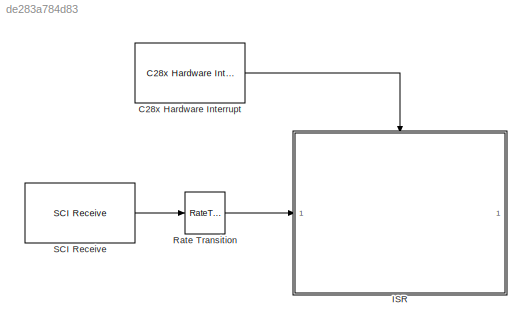
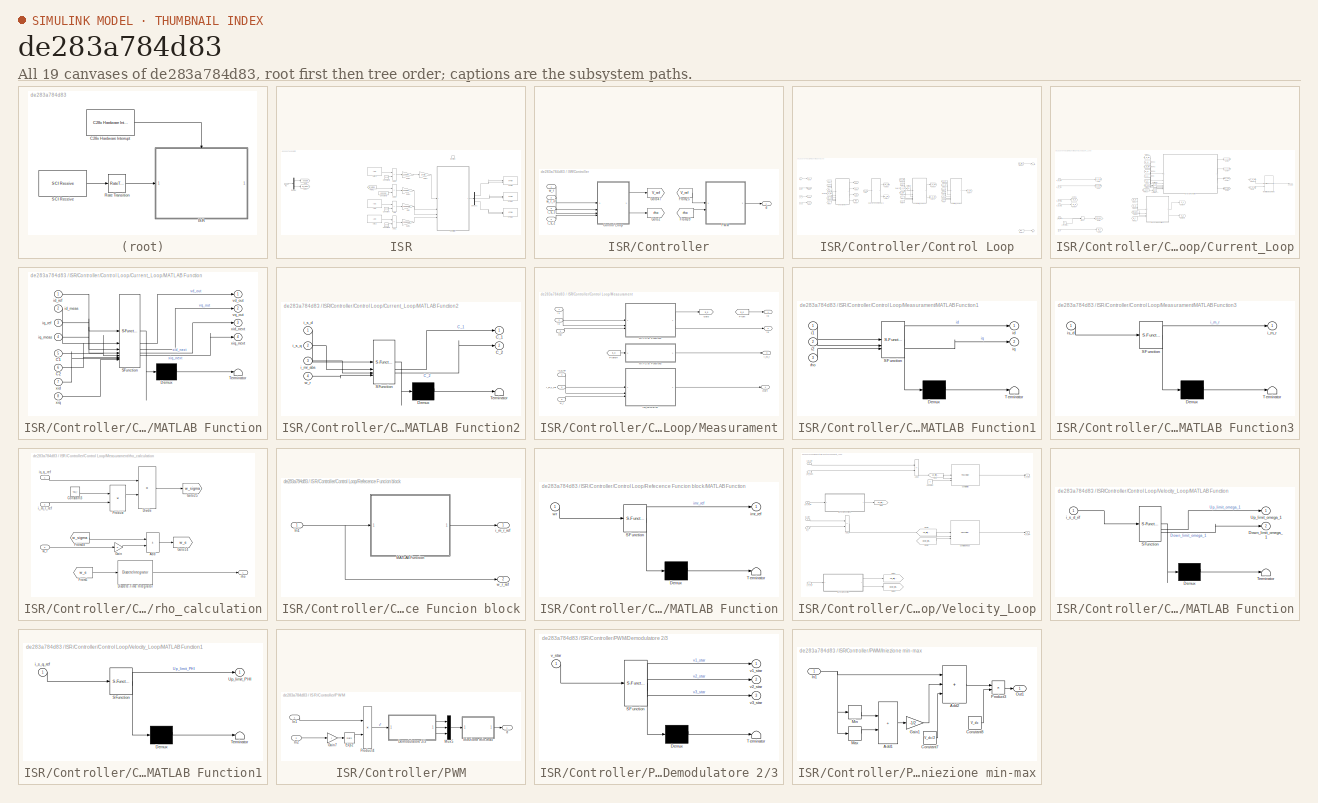
[diagram: thumbnail index - all 19 canvases of the model, root first then tree order]
MODEL slx_de283a784d83
KIND model
CONFIG AbsTol = auto
CONFIG EnableMultiTasking = on
CONFIG FixedStep = 0.01
CONFIG InitFcn = Motor_data_IM_R;
CONFIG MaxStep = 1e-5
CONFIG MinStep = auto
CONFIG RelTol = 1e-4
CONFIG SampleTimeConstraint = Unconstrained
CONFIG SolverName = FixedStepDiscrete
CONFIG StartTime = 0.0
CONFIG StopTime = Inf
BLOCK [Reference] C28x Hardware Interrupt  REF=c2000lib/Scheduling/C28x Hardware Interrupt
  SourceBlock = c2000lib/Scheduling/C28x Hardware Interrupt
  SourceType = C28x Interrupt Block
BLOCK [SubSystem] ISR
BLOCK [Reference] ISR/ADC  REF=c2802xlib/ADC
  LibrarySourceBlock = c2837xDlib/ADC
  SourceBlock = c2802xlib/ADC
  SourceType = ADC Type 3-5
  UserDataPersistent = on
BLOCK [Reference] ISR/ADC1  REF=c2802xlib/ADC
  LibrarySourceBlock = c2837xDlib/ADC
  SourceBlock = c2802xlib/ADC
  SourceType = ADC Type 3-5
  UserDataPersistent = on
BLOCK [Reference] ISR/ADC2  REF=c2802xlib/ADC
  LibrarySourceBlock = c2837xDlib/ADC
  SourceBlock = c2802xlib/ADC
  SourceType = ADC Type 3-5
  UserDataPersistent = on
BLOCK [Sum] ISR/Add
  IconShape = rectangular
  Inputs = +-
BLOCK [Sum] ISR/Add1
  IconShape = rectangular
  Inputs = +-
BLOCK [Sum] ISR/Add2
  IconShape = rectangular
  Inputs = +-
BLOCK [Sum] ISR/Add3
  IconShape = rectangular
  Inputs = +-
BLOCK [Constant] ISR/Constant
  Value = 2048
BLOCK [Constant] ISR/Constant1
  Value = 2048
BLOCK [Constant] ISR/Constant2
  Value = 2048
BLOCK [Constant] ISR/Constant3
  OutDataTypeStr = single
  Value = 65535/2
BLOCK [SubSystem] ISR/Controller
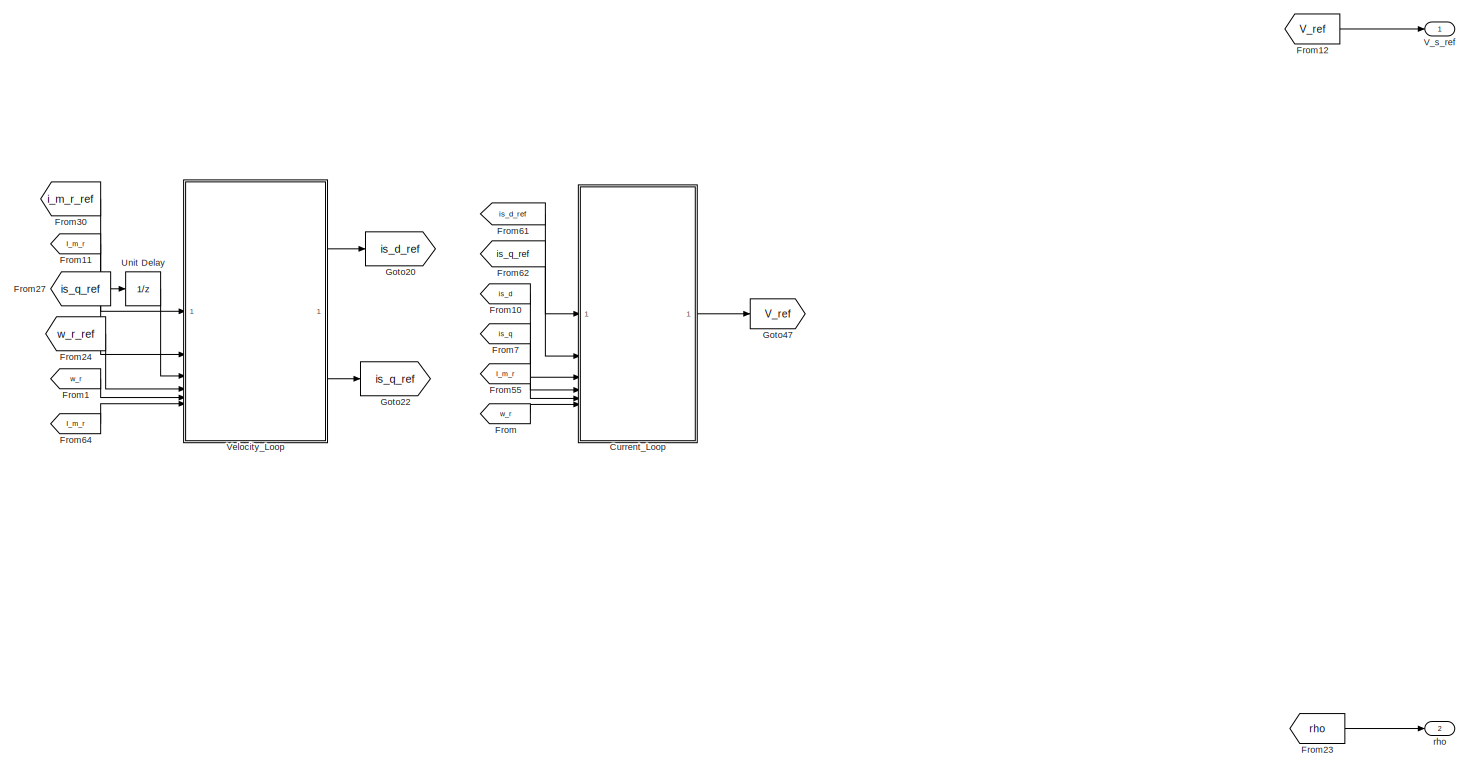
[diagram: ISR/Controller/Control Loop - part 1/2, right side, full height]
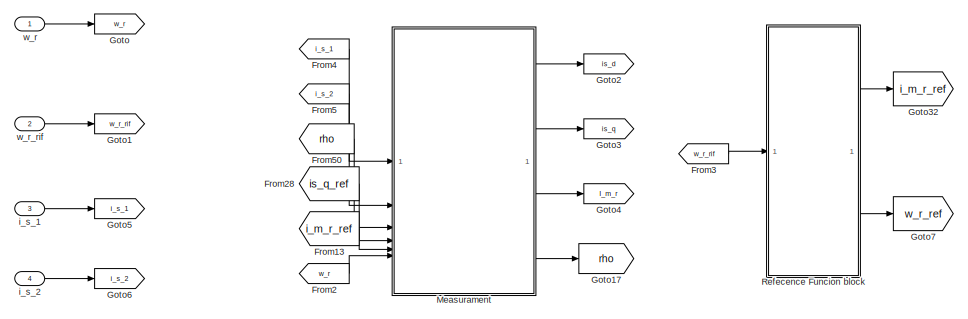
[diagram: ISR/Controller/Control Loop - part 2/2, middle left region]
BLOCK [SubSystem] ISR/Controller/Control Loop
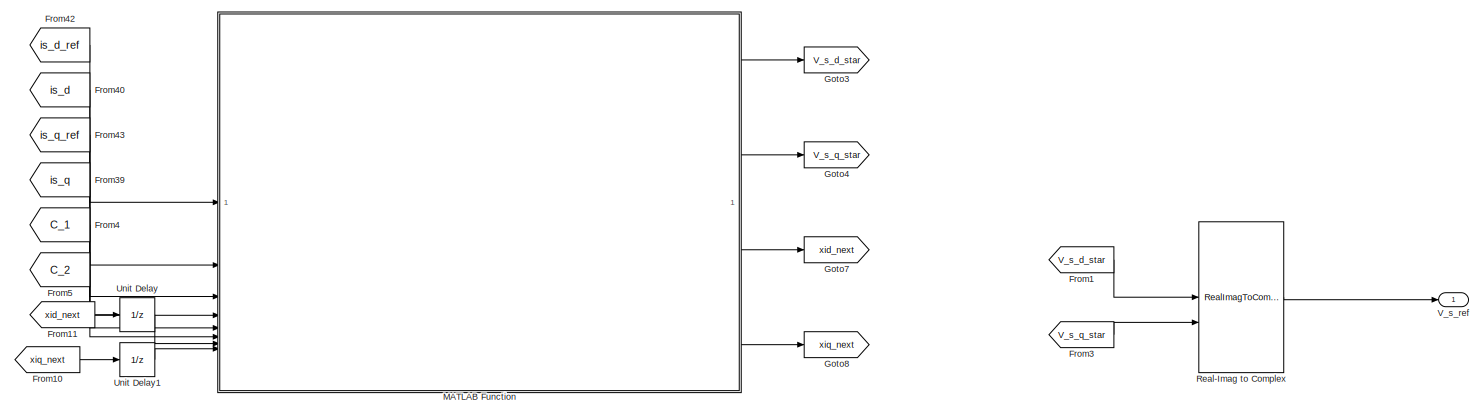
[diagram: ISR/Controller/Control Loop/Current_Loop - part 1/2, top right region]
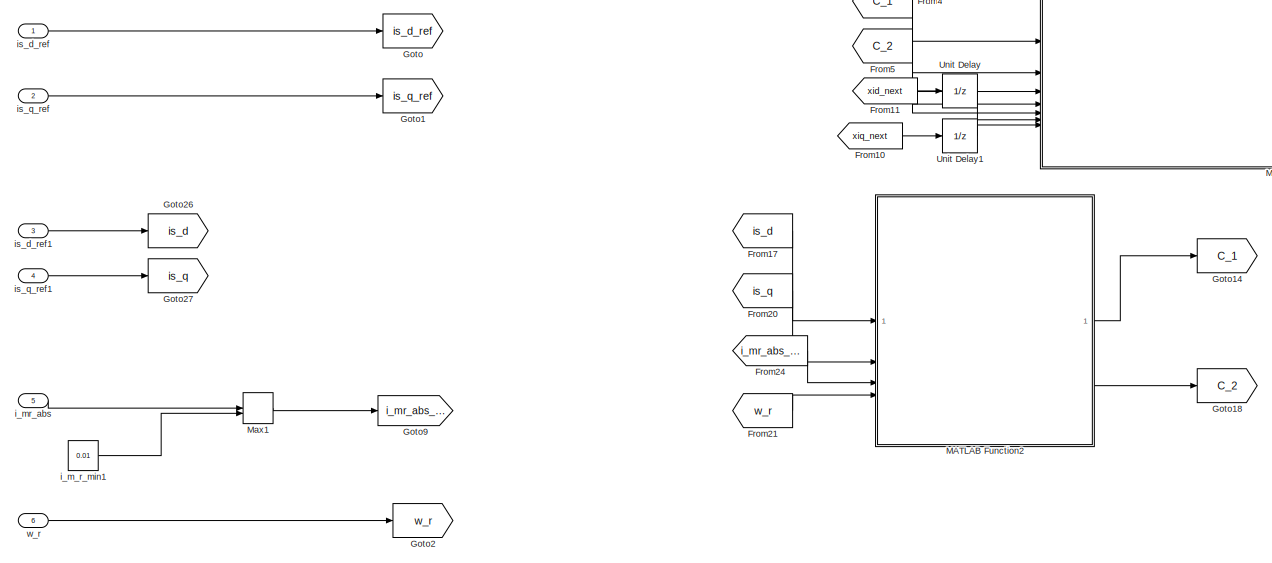
[diagram: ISR/Controller/Control Loop/Current_Loop - part 2/2, middle left region]
BLOCK [SubSystem] ISR/Controller/Control Loop/Current_Loop
BLOCK [From] ISR/Controller/Control Loop/Current_Loop/From1
  GotoTag = V_s_d_star
BLOCK [From] ISR/Controller/Control Loop/Current_Loop/From10
  GotoTag = xiq_next
BLOCK [From] ISR/Controller/Control Loop/Current_Loop/From11
  GotoTag = xid_next
BLOCK [From] ISR/Controller/Control Loop/Current_Loop/From17
  GotoTag = is_d
BLOCK [From] ISR/Controller/Control Loop/Current_Loop/From20
  GotoTag = is_q
BLOCK [From] ISR/Controller/Control Loop/Current_Loop/From21
  GotoTag = w_r
BLOCK [From] ISR/Controller/Control Loop/Current_Loop/From24
  GotoTag = i_mr_abs_safe
BLOCK [From] ISR/Controller/Control Loop/Current_Loop/From3
  GotoTag = V_s_q_star
BLOCK [From] ISR/Controller/Control Loop/Current_Loop/From39
  GotoTag = is_q
BLOCK [From] ISR/Controller/Control Loop/Current_Loop/From4
  GotoTag = C_1
BLOCK [From] ISR/Controller/Control Loop/Current_Loop/From40
  GotoTag = is_d
BLOCK [From] ISR/Controller/Control Loop/Current_Loop/From42
  GotoTag = is_d_ref
BLOCK [From] ISR/Controller/Control Loop/Current_Loop/From43
  GotoTag = is_q_ref
BLOCK [From] ISR/Controller/Control Loop/Current_Loop/From5
  GotoTag = C_2
BLOCK [Goto] ISR/Controller/Control Loop/Current_Loop/Goto
  GotoTag = is_d_ref
BLOCK [Goto] ISR/Controller/Control Loop/Current_Loop/Goto1
  GotoTag = is_q_ref
BLOCK [Goto] ISR/Controller/Control Loop/Current_Loop/Goto14
  GotoTag = C_1
BLOCK [Goto] ISR/Controller/Control Loop/Current_Loop/Goto18
  GotoTag = C_2
BLOCK [Goto] ISR/Controller/Control Loop/Current_Loop/Goto2
  GotoTag = w_r
BLOCK [Goto] ISR/Controller/Control Loop/Current_Loop/Goto26
  GotoTag = is_d
BLOCK [Goto] ISR/Controller/Control Loop/Current_Loop/Goto27
  GotoTag = is_q
BLOCK [Goto] ISR/Controller/Control Loop/Current_Loop/Goto3
  GotoTag = V_s_d_star
BLOCK [Goto] ISR/Controller/Control Loop/Current_Loop/Goto4
  GotoTag = V_s_q_star
BLOCK [Goto] ISR/Controller/Control Loop/Current_Loop/Goto7
  GotoTag = xid_next
BLOCK [Goto] ISR/Controller/Control Loop/Current_Loop/Goto8
  GotoTag = xiq_next
BLOCK [Goto] ISR/Controller/Control Loop/Current_Loop/Goto9
  GotoTag = i_mr_abs_safe
BLOCK [SubSystem] ISR/Controller/Control Loop/Current_Loop/MATLAB Function
  ErrorFcn = Stateflow.Translate.translate
  PermitHierarchicalResolution = ExplicitOnly
  SFBlockType = MATLAB Function
  TreatAsAtomicUnit = on
BLOCK [Demux] ISR/Controller/Control Loop/Current_Loop/MATLAB Function/ Demux 
  Outputs = 1
BLOCK [S-Function] ISR/Controller/Control Loop/Current_Loop/MATLAB Function/ SFunction 
  EnableBusSupport = on
  FunctionName = sf_sfun
  Parameters = Ki_d,Ki_q,Kp_d,Kp_q,Ts,lim
  PortCounts = [8 5]
  SFcnIsStateOwnerBlock = off
  SFunctionDeploymentMode = off
  Tag = Stateflow S-Function 1
BLOCK [Terminator] ISR/Controller/Control Loop/Current_Loop/MATLAB Function/ Terminator 
BLOCK [Inport] ISR/Controller/Control Loop/Current_Loop/MATLAB Function/C1
  Port = 5
BLOCK [Inport] ISR/Controller/Control Loop/Current_Loop/MATLAB Function/C2
  Port = 6
BLOCK [Inport] ISR/Controller/Control Loop/Current_Loop/MATLAB Function/id_meas
  Port = 2
BLOCK [Inport] ISR/Controller/Control Loop/Current_Loop/MATLAB Function/id_ref
BLOCK [Inport] ISR/Controller/Control Loop/Current_Loop/MATLAB Function/iq_meas
  Port = 4
BLOCK [Inport] ISR/Controller/Control Loop/Current_Loop/MATLAB Function/iq_ref
  Port = 3
BLOCK [Outport] ISR/Controller/Control Loop/Current_Loop/MATLAB Function/vd_out
BLOCK [Outport] ISR/Controller/Control Loop/Current_Loop/MATLAB Function/vq_out
  Port = 2
BLOCK [Inport] ISR/Controller/Control Loop/Current_Loop/MATLAB Function/xid
  Port = 7
BLOCK [Outport] ISR/Controller/Control Loop/Current_Loop/MATLAB Function/xid_next
  Port = 3
BLOCK [Inport] ISR/Controller/Control Loop/Current_Loop/MATLAB Function/xiq
  Port = 8
BLOCK [Outport] ISR/Controller/Control Loop/Current_Loop/MATLAB Function/xiq_next
  Port = 4
BLOCK [SubSystem] ISR/Controller/Control Loop/Current_Loop/MATLAB Function2
  ErrorFcn = Stateflow.Translate.translate
  PermitHierarchicalResolution = ExplicitOnly
  SFBlockType = MATLAB Function
  TreatAsAtomicUnit = on
BLOCK [Demux] ISR/Controller/Control Loop/Current_Loop/MATLAB Function2/ Demux 
  Outputs = 1
BLOCK [S-Function] ISR/Controller/Control Loop/Current_Loop/MATLAB Function2/ SFunction 
  EnableBusSupport = on
  FunctionName = sf_sfun
  Parameters = K_r,K_s,Tau_r,p
  PortCounts = [4 3]
  SFcnIsStateOwnerBlock = off
  SFunctionDeploymentMode = off
  Tag = Stateflow S-Function 5
BLOCK [Terminator] ISR/Controller/Control Loop/Current_Loop/MATLAB Function2/ Terminator 
BLOCK [Outport] ISR/Controller/Control Loop/Current_Loop/MATLAB Function2/C_1
BLOCK [Outport] ISR/Controller/Control Loop/Current_Loop/MATLAB Function2/C_2
  Port = 2
BLOCK [Inport] ISR/Controller/Control Loop/Current_Loop/MATLAB Function2/i_mr_abs
  Port = 3
BLOCK [Inport] ISR/Controller/Control Loop/Current_Loop/MATLAB Function2/i_s_d
BLOCK [Inport] ISR/Controller/Control Loop/Current_Loop/MATLAB Function2/i_s_q
  Port = 2
BLOCK [Inport] ISR/Controller/Control Loop/Current_Loop/MATLAB Function2/w_r
  Port = 4
BLOCK [MinMax] ISR/Controller/Control Loop/Current_Loop/Max1
  Function = max
  Inputs = 2
BLOCK [RealImagToComplex] ISR/Controller/Control Loop/Current_Loop/Real-Imag to Complex
BLOCK [UnitDelay] ISR/Controller/Control Loop/Current_Loop/Unit Delay
  HasFrameUpgradeWarning = on
  SampleTime = -1
BLOCK [UnitDelay] ISR/Controller/Control Loop/Current_Loop/Unit Delay1
  HasFrameUpgradeWarning = on
  SampleTime = -1
BLOCK [Outport] ISR/Controller/Control Loop/Current_Loop/V_s_ref
BLOCK [Constant] ISR/Controller/Control Loop/Current_Loop/i_m_r_min1
  OutDataTypeStr = single
  Value = 0.01
BLOCK [Inport] ISR/Controller/Control Loop/Current_Loop/i_mr_abs
  Port = 5
BLOCK [Inport] ISR/Controller/Control Loop/Current_Loop/is_d_ref
BLOCK [Inport] ISR/Controller/Control Loop/Current_Loop/is_d_ref1
  Port = 3
BLOCK [Inport] ISR/Controller/Control Loop/Current_Loop/is_q_ref
  Port = 2
BLOCK [Inport] ISR/Controller/Control Loop/Current_Loop/is_q_ref1
  Port = 4
BLOCK [Inport] ISR/Controller/Control Loop/Current_Loop/w_r
  Port = 6
BLOCK [From] ISR/Controller/Control Loop/From
  GotoTag = w_r
BLOCK [From] ISR/Controller/Control Loop/From1
  GotoTag = w_r
BLOCK [From] ISR/Controller/Control Loop/From10
  GotoTag = is_d
BLOCK [From] ISR/Controller/Control Loop/From11
  GotoTag = I_m_r
BLOCK [From] ISR/Controller/Control Loop/From12
  GotoTag = V_ref
BLOCK [From] ISR/Controller/Control Loop/From13
  GotoTag = i_m_r_ref
BLOCK [From] ISR/Controller/Control Loop/From2
  GotoTag = w_r
BLOCK [From] ISR/Controller/Control Loop/From23
  GotoTag = rho
BLOCK [From] ISR/Controller/Control Loop/From24
  GotoTag = w_r_ref
BLOCK [From] ISR/Controller/Control Loop/From27
  GotoTag = is_q_ref
BLOCK [From] ISR/Controller/Control Loop/From28
  GotoTag = is_q_ref
BLOCK [From] ISR/Controller/Control Loop/From3
  GotoTag = w_r_rif
BLOCK [From] ISR/Controller/Control Loop/From30
  GotoTag = i_m_r_ref
BLOCK [From] ISR/Controller/Control Loop/From4
  GotoTag = i_s_1
BLOCK [From] ISR/Controller/Control Loop/From5
  GotoTag = i_s_2
BLOCK [From] ISR/Controller/Control Loop/From50
  GotoTag = rho
BLOCK [From] ISR/Controller/Control Loop/From55
  GotoTag = I_m_r
BLOCK [From] ISR/Controller/Control Loop/From61
  GotoTag = is_d_ref
BLOCK [From] ISR/Controller/Control Loop/From62
  GotoTag = is_q_ref
BLOCK [From] ISR/Controller/Control Loop/From64
  GotoTag = I_m_r
BLOCK [From] ISR/Controller/Control Loop/From7
  GotoTag = is_q
BLOCK [Goto] ISR/Controller/Control Loop/Goto
  GotoTag = w_r
BLOCK [Goto] ISR/Controller/Control Loop/Goto1
  GotoTag = w_r_rif
BLOCK [Goto] ISR/Controller/Control Loop/Goto17
  GotoTag = rho
BLOCK [Goto] ISR/Controller/Control Loop/Goto2
  GotoTag = is_d
BLOCK [Goto] ISR/Controller/Control Loop/Goto20
  GotoTag = is_d_ref
BLOCK [Goto] ISR/Controller/Control Loop/Goto22
  GotoTag = is_q_ref
BLOCK [Goto] ISR/Controller/Control Loop/Goto3
  GotoTag = is_q
BLOCK [Goto] ISR/Controller/Control Loop/Goto32
  GotoTag = i_m_r_ref
BLOCK [Goto] ISR/Controller/Control Loop/Goto4
  GotoTag = I_m_r
BLOCK [Goto] ISR/Controller/Control Loop/Goto47
  GotoTag = V_ref
BLOCK [Goto] ISR/Controller/Control Loop/Goto5
  GotoTag = i_s_1
BLOCK [Goto] ISR/Controller/Control Loop/Goto6
  GotoTag = i_s_2
BLOCK [Goto] ISR/Controller/Control Loop/Goto7
  GotoTag = w_r_ref
BLOCK [SubSystem] ISR/Controller/Control Loop/Measurament
BLOCK [From] ISR/Controller/Control Loop/Measurament/From
  GotoTag = is_d
BLOCK [From] ISR/Controller/Control Loop/Measurament/From54
  GotoTag = is_d
BLOCK [Goto] ISR/Controller/Control Loop/Measurament/Goto
  GotoTag = is_d
BLOCK [SubSystem] ISR/Controller/Control Loop/Measurament/MATLAB Function1
  ErrorFcn = Stateflow.Translate.translate
  PermitHierarchicalResolution = ExplicitOnly
  SFBlockType = MATLAB Function
  TreatAsAtomicUnit = on
BLOCK [Demux] ISR/Controller/Control Loop/Measurament/MATLAB Function1/ Demux 
  Outputs = 1
BLOCK [S-Function] ISR/Controller/Control Loop/Measurament/MATLAB Function1/ SFunction 
  EnableBusSupport = on
  FunctionName = sf_sfun
  PortCounts = [3 3]
  SFcnIsStateOwnerBlock = off
  SFunctionDeploymentMode = off
  Tag = Stateflow S-Function 2
BLOCK [Terminator] ISR/Controller/Control Loop/Measurament/MATLAB Function1/ Terminator 
BLOCK [Inport] ISR/Controller/Control Loop/Measurament/MATLAB Function1/i1
BLOCK [Inport] ISR/Controller/Control Loop/Measurament/MATLAB Function1/i2
  Port = 2
BLOCK [Outport] ISR/Controller/Control Loop/Measurament/MATLAB Function1/id
BLOCK [Outport] ISR/Controller/Control Loop/Measurament/MATLAB Function1/iq
  Port = 2
BLOCK [Inport] ISR/Controller/Control Loop/Measurament/MATLAB Function1/rho
  Port = 3
BLOCK [SubSystem] ISR/Controller/Control Loop/Measurament/MATLAB Function3
  ErrorFcn = Stateflow.Translate.translate
  PermitHierarchicalResolution = ExplicitOnly
  SFBlockType = MATLAB Function
  TreatAsAtomicUnit = on
BLOCK [Demux] ISR/Controller/Control Loop/Measurament/MATLAB Function3/ Demux 
  Outputs = 1
BLOCK [S-Function] ISR/Controller/Control Loop/Measurament/MATLAB Function3/ SFunction 
  EnableBusSupport = on
  FunctionName = sf_sfun
  Parameters = Tau_r,Ts
  PortCounts = [1 2]
  SFcnIsStateOwnerBlock = off
  SFunctionDeploymentMode = off
  Tag = Stateflow S-Function 3
BLOCK [Terminator] ISR/Controller/Control Loop/Measurament/MATLAB Function3/ Terminator 
BLOCK [Outport] ISR/Controller/Control Loop/Measurament/MATLAB Function3/i_m_r
BLOCK [Inport] ISR/Controller/Control Loop/Measurament/MATLAB Function3/is_d
BLOCK [Outport] ISR/Controller/Control Loop/Measurament/Out4
  Port = 4
BLOCK [Inport] ISR/Controller/Control Loop/Measurament/i1
BLOCK [Inport] ISR/Controller/Control Loop/Measurament/i2
  Port = 2
BLOCK [Outport] ISR/Controller/Control Loop/Measurament/i_m_r
  Port = 3
BLOCK [Inport] ISR/Controller/Control Loop/Measurament/i_m_r_ref
  Port = 5
BLOCK [Outport] ISR/Controller/Control Loop/Measurament/id
BLOCK [Outport] ISR/Controller/Control Loop/Measurament/iq
  Port = 2
BLOCK [Inport] ISR/Controller/Control Loop/Measurament/is_q_ref
  Port = 4
BLOCK [Inport] ISR/Controller/Control Loop/Measurament/rho
  Port = 3
BLOCK [SubSystem] ISR/Controller/Control Loop/Measurament/rho_calculation
BLOCK [Sum] ISR/Controller/Control Loop/Measurament/rho_calculation/Add
  IconShape = rectangular
BLOCK [Constant] ISR/Controller/Control Loop/Measurament/rho_calculation/Constant3
  Value = Tau_r
BLOCK [DiscreteIntegrator] ISR/Controller/Control Loop/Measurament/rho_calculation/Discrete-Time Integrator
  ICPrevOutput = DiscIntNeverNeededParam
  ICPrevScaledInput = DiscIntNeverNeededParam
  InitialConditionSetting = Auto
  OutDataTypeStr = single
  SampleTime = -1
BLOCK [Product] ISR/Controller/Control Loop/Measurament/rho_calculation/Divide
  Inputs = */
BLOCK [From] ISR/Controller/Control Loop/Measurament/rho_calculation/From48
  GotoTag = w_sigma
BLOCK [From] ISR/Controller/Control Loop/Measurament/rho_calculation/From5
  GotoTag = w_e
BLOCK [Gain] ISR/Controller/Control Loop/Measurament/rho_calculation/Gain
  Gain = p
BLOCK [Goto] ISR/Controller/Control Loop/Measurament/rho_calculation/Goto14
  GotoTag = w_e
BLOCK [Goto] ISR/Controller/Control Loop/Measurament/rho_calculation/Goto25
  GotoTag = w_sigma
BLOCK [Product] ISR/Controller/Control Loop/Measurament/rho_calculation/Product
BLOCK [Inport] ISR/Controller/Control Loop/Measurament/rho_calculation/i_m_r_ref
  Port = 2
BLOCK [Inport] ISR/Controller/Control Loop/Measurament/rho_calculation/is_q_ref
BLOCK [Outport] ISR/Controller/Control Loop/Measurament/rho_calculation/rho
BLOCK [Inport] ISR/Controller/Control Loop/Measurament/rho_calculation/w_r
  Port = 3
BLOCK [Inport] ISR/Controller/Control Loop/Measurament/w_r
  Port = 6
BLOCK [SubSystem] ISR/Controller/Control Loop/Refecence Funcion block
BLOCK [Inport] ISR/Controller/Control Loop/Refecence Funcion block/In1
BLOCK [SubSystem] ISR/Controller/Control Loop/Refecence Funcion block/MATLAB Function
  ErrorFcn = Stateflow.Translate.translate
  PermitHierarchicalResolution = ExplicitOnly
  SFBlockType = MATLAB Function
  TreatAsAtomicUnit = on
BLOCK [Demux] ISR/Controller/Control Loop/Refecence Funcion block/MATLAB Function/ Demux 
  Outputs = 1
BLOCK [S-Function] ISR/Controller/Control Loop/Refecence Funcion block/MATLAB Function/ SFunction 
  EnableBusSupport = on
  FunctionName = sf_sfun
  Parameters = imr_min,wr_n
  PortCounts = [1 2]
  SFcnIsStateOwnerBlock = off
  SFunctionDeploymentMode = off
  Tag = Stateflow S-Function 6
BLOCK [Terminator] ISR/Controller/Control Loop/Refecence Funcion block/MATLAB Function/ Terminator 
BLOCK [Outport] ISR/Controller/Control Loop/Refecence Funcion block/MATLAB Function/imr_ref
BLOCK [Inport] ISR/Controller/Control Loop/Refecence Funcion block/MATLAB Function/wr
BLOCK [Outport] ISR/Controller/Control Loop/Refecence Funcion block/i_m_r_ref
BLOCK [Outport] ISR/Controller/Control Loop/Refecence Funcion block/w_r_ref
  Port = 2
BLOCK [UnitDelay] ISR/Controller/Control Loop/Unit Delay
  HasFrameUpgradeWarning = on
  SampleTime = -1
BLOCK [Outport] ISR/Controller/Control Loop/V_s_ref
BLOCK [SubSystem] ISR/Controller/Control Loop/Velocity_Loop
BLOCK [Sum] ISR/Controller/Control Loop/Velocity_Loop/Add1
  IconShape = rectangular
  Inputs = +-
BLOCK [Sum] ISR/Controller/Control Loop/Velocity_Loop/Add2
  IconShape = rectangular
  Inputs = +-
BLOCK [Constant] ISR/Controller/Control Loop/Velocity_Loop/Constant
  OutDataTypeStr = single
  Value = 0
BLOCK [Reference] ISR/Controller/Control Loop/Velocity_Loop/Controller flux  REF=slpidlib/PID Controller
  SourceBlock = slpidlib/PID Controller
  SourceType = PID 1dof
BLOCK [Reference] ISR/Controller/Control Loop/Velocity_Loop/Controller omega  REF=slpidlib/PID Controller
  SourceBlock = slpidlib/PID Controller
  SourceType = PID 1dof
BLOCK [From] ISR/Controller/Control Loop/Velocity_Loop/From
  GotoTag = Up_limit_PHI
BLOCK [From] ISR/Controller/Control Loop/Velocity_Loop/From2
  GotoTag = Down_limit_omega_1
BLOCK [From] ISR/Controller/Control Loop/Velocity_Loop/From3
  GotoTag = Up_limit_omega_1
BLOCK [Goto] ISR/Controller/Control Loop/Velocity_Loop/Goto
  GotoTag = Up_limit_PHI
BLOCK [Goto] ISR/Controller/Control Loop/Velocity_Loop/Goto1
  GotoTag = Up_limit_omega_1
BLOCK [Goto] ISR/Controller/Control Loop/Velocity_Loop/Goto2
  GotoTag = Down_limit_omega_1
BLOCK [SubSystem] ISR/Controller/Control Loop/Velocity_Loop/MATLAB Function
  ErrorFcn = Stateflow.Translate.translate
  PermitHierarchicalResolution = ExplicitOnly
  SFBlockType = MATLAB Function
  TreatAsAtomicUnit = on
BLOCK [Demux] ISR/Controller/Control Loop/Velocity_Loop/MATLAB Function/ Demux 
  Outputs = 1
BLOCK [S-Function] ISR/Controller/Control Loop/Velocity_Loop/MATLAB Function/ SFunction 
  EnableBusSupport = on
  FunctionName = sf_sfun
  Parameters = Is_adc
  PortCounts = [1 3]
  SFcnIsStateOwnerBlock = off
  SFunctionDeploymentMode = off
  Tag = Stateflow S-Function 4
BLOCK [Terminator] ISR/Controller/Control Loop/Velocity_Loop/MATLAB Function/ Terminator 
BLOCK [Outport] ISR/Controller/Control Loop/Velocity_Loop/MATLAB Function/Down_limit_omega_1
  Port = 2
BLOCK [Outport] ISR/Controller/Control Loop/Velocity_Loop/MATLAB Function/Up_limit_omega_1
BLOCK [Inport] ISR/Controller/Control Loop/Velocity_Loop/MATLAB Function/i_s_d_rif
BLOCK [SubSystem] ISR/Controller/Control Loop/Velocity_Loop/MATLAB Function1
  ErrorFcn = Stateflow.Translate.translate
  PermitHierarchicalResolution = ExplicitOnly
  SFBlockType = MATLAB Function
  TreatAsAtomicUnit = on
BLOCK [Demux] ISR/Controller/Control Loop/Velocity_Loop/MATLAB Function1/ Demux 
  Outputs = 1
BLOCK [S-Function] ISR/Controller/Control Loop/Velocity_Loop/MATLAB Function1/ SFunction 
  EnableBusSupport = on
  FunctionName = sf_sfun
  Parameters = Is_adc
  PortCounts = [1 2]
  SFcnIsStateOwnerBlock = off
  SFunctionDeploymentMode = off
  Tag = Stateflow S-Function 7
BLOCK [Terminator] ISR/Controller/Control Loop/Velocity_Loop/MATLAB Function1/ Terminator 
BLOCK [Outport] ISR/Controller/Control Loop/Velocity_Loop/MATLAB Function1/Up_limit_PHI
BLOCK [Inport] ISR/Controller/Control Loop/Velocity_Loop/MATLAB Function1/i_s_q_ref
BLOCK [Inport] ISR/Controller/Control Loop/Velocity_Loop/i_m_r_abs
  Port = 2
BLOCK [Inport] ISR/Controller/Control Loop/Velocity_Loop/i_m_r_ref
BLOCK [Inport] ISR/Controller/Control Loop/Velocity_Loop/i_s_d_rif
  Port = 6
BLOCK [Inport] ISR/Controller/Control Loop/Velocity_Loop/i_s_q_ref
  Port = 3
BLOCK [Outport] ISR/Controller/Control Loop/Velocity_Loop/is_d_ref
BLOCK [Outport] ISR/Controller/Control Loop/Velocity_Loop/is_q_ref
  Port = 2
BLOCK [Inport] ISR/Controller/Control Loop/Velocity_Loop/w_r
  Port = 5
BLOCK [Inport] ISR/Controller/Control Loop/Velocity_Loop/w_r_ref
  Port = 4
BLOCK [Inport] ISR/Controller/Control Loop/i_s_1
  Port = 3
BLOCK [Inport] ISR/Controller/Control Loop/i_s_2
  Port = 4
BLOCK [Outport] ISR/Controller/Control Loop/rho
  Port = 2
BLOCK [Inport] ISR/Controller/Control Loop/w_r
BLOCK [Inport] ISR/Controller/Control Loop/w_r_rif
  Port = 2
BLOCK [From] ISR/Controller/From25
  GotoTag = V_ref
BLOCK [From] ISR/Controller/From39
  GotoTag = rho
BLOCK [Goto] ISR/Controller/Goto2
  GotoTag = rho
BLOCK [Goto] ISR/Controller/Goto47
  GotoTag = V_ref
BLOCK [SubSystem] ISR/Controller/PWM
BLOCK [SubSystem] ISR/Controller/PWM/Demodulatore 2//3
  ErrorFcn = Stateflow.Translate.translate
  PermitHierarchicalResolution = ExplicitOnly
  SFBlockType = MATLAB Function
  TreatAsAtomicUnit = on
BLOCK [Demux] ISR/Controller/PWM/Demodulatore 2//3/ Demux 
  Outputs = 1
BLOCK [S-Function] ISR/Controller/PWM/Demodulatore 2//3/ SFunction 
  EnableBusSupport = on
  FunctionName = sf_sfun
  PortCounts = [1 4]
  SFcnIsStateOwnerBlock = off
  SFunctionDeploymentMode = off
  Tag = Stateflow S-Function 8
BLOCK [Terminator] ISR/Controller/PWM/Demodulatore 2//3/ Terminator 
BLOCK [Outport] ISR/Controller/PWM/Demodulatore 2//3/v1_star
BLOCK [Outport] ISR/Controller/PWM/Demodulatore 2//3/v2_star
  Port = 2
BLOCK [Outport] ISR/Controller/PWM/Demodulatore 2//3/v3_star
  Port = 3
BLOCK [Inport] ISR/Controller/PWM/Demodulatore 2//3/v_star
BLOCK [Math] ISR/Controller/PWM/Exp2
  SignedPower = on
BLOCK [Gain] ISR/Controller/PWM/Gain7
  Gain = j
BLOCK [Inport] ISR/Controller/PWM/In1
BLOCK [Inport] ISR/Controller/PWM/In2
  Port = 2
BLOCK [SubSystem] ISR/Controller/PWM/Iniezione min-max
BLOCK [Sum] ISR/Controller/PWM/Iniezione min-max/Add1
  IconShape = rectangular
BLOCK [Sum] ISR/Controller/PWM/Iniezione min-max/Add2
  IconShape = rectangular
  Inputs = +++
BLOCK [Constant] ISR/Controller/PWM/Iniezione min-max/Constant7
  Value = V_dc/2
BLOCK [Constant] ISR/Controller/PWM/Iniezione min-max/Constant8
  Value = V_dc
BLOCK [Gain] ISR/Controller/PWM/Iniezione min-max/Gain1
  Gain = -1/2
BLOCK [Inport] ISR/Controller/PWM/Iniezione min-max/In1
BLOCK [MinMax] ISR/Controller/PWM/Iniezione min-max/Max
  Function = max
BLOCK [MinMax] ISR/Controller/PWM/Iniezione min-max/Min
BLOCK [Outport] ISR/Controller/PWM/Iniezione min-max/Out1
BLOCK [Product] ISR/Controller/PWM/Iniezione min-max/Product3
  Inputs = */
BLOCK [Mux] ISR/Controller/PWM/Mux5
  DisplayOption = bar
  Inputs = 3
BLOCK [Product] ISR/Controller/PWM/Product4
BLOCK [Outport] ISR/Controller/PWM/d
BLOCK [Outport] ISR/Controller/d
BLOCK [Inport] ISR/Controller/i_s_1
  Port = 3
BLOCK [Inport] ISR/Controller/i_s_2
  Port = 4
BLOCK [Inport] ISR/Controller/w_r
BLOCK [Inport] ISR/Controller/w_r_rif
  Port = 2
BLOCK [Demux] ISR/Demux
  Outputs = 2
BLOCK [Demux] ISR/Demux1
  Outputs = 3
BLOCK [From] ISR/From1
  GotoTag = ref_uint16
BLOCK [Gain] ISR/Gain
  Gain = 200/4095
  OutDataTypeStr = single
BLOCK [Gain] ISR/Gain1
  Gain = 200/4095
  OutDataTypeStr = single
BLOCK [Gain] ISR/Gain2
  Gain = 1200/4095
  OutDataTypeStr = single
BLOCK [Gain] ISR/Gain3
  Gain = (2*pi)/60
  OutDataTypeStr = single
BLOCK [Gain] ISR/Gain4
  Gain = 1200/65535
  OutDataTypeStr = single
  ParamDataTypeStr = single
BLOCK [Goto] ISR/Goto
  GotoTag = enable
BLOCK [Goto] ISR/Goto1
  GotoTag = ref_uint16
BLOCK [Inport] ISR/In1
BLOCK [Reference] ISR/ePWM  REF=c2802xlib/ePWM
  LibrarySourceBlock = c2837xDlib/ePWM
  SourceBlock = c2802xlib/ePWM
  SourceType = ePWM Type 1-4
  UserDataPersistent = on
BLOCK [Reference] ISR/ePWM1  REF=c2802xlib/ePWM
  LibrarySourceBlock = c2837xDlib/ePWM
  SourceBlock = c2802xlib/ePWM
  SourceType = ePWM Type 1-4
  UserDataPersistent = on
BLOCK [Reference] ISR/ePWM2  REF=c2802xlib/ePWM
  LibrarySourceBlock = c2837xDlib/ePWM
  SourceBlock = c2802xlib/ePWM
  SourceType = ePWM Type 1-4
  UserDataPersistent = on
BLOCK [TriggerPort] ISR/function
  StatesWhenEnabling = held
  TriggerType = function-call
  VariantControl = (inherit)
BLOCK [RateTransition] Rate Transition
  Deterministic = off
BLOCK [Reference] SCI Receive  REF=c280xlib/SCI Receive
  LibrarySourceBlock = c2837xDlib/SCI Receive
  Priority = 2
  SourceBlock = c280xlib/SCI Receive
  SourceType = C28x SCI Receive
LINE C28x Hardware Interrupt:1 -> ISR:trigger
LINE ISR/ADC1:1 -> ISR/Add2:1
LINE ISR/ADC2:1 -> ISR/Add1:1
LINE ISR/ADC:1 -> ISR/Add:1
LINE ISR/Add1:1 -> ISR/Gain1:1
LINE ISR/Add2:1 -> ISR/Gain2:1
LINE ISR/Add3:1 -> ISR/Gain4:1
LINE ISR/Add:1 -> ISR/Gain:1
LINE ISR/Constant1:1 -> ISR/Add1:2
LINE ISR/Constant2:1 -> ISR/Add2:2
LINE ISR/Constant3:1 -> ISR/Add3:2
LINE ISR/Constant:1 -> ISR/Add:2
LINE ISR/Controller/Control Loop/Current_Loop/From10:1 -> ISR/Controller/Control Loop/Current_Loop/Unit Delay1:1
LINE ISR/Controller/Control Loop/Current_Loop/From11:1 -> ISR/Controller/Control Loop/Current_Loop/Unit Delay:1
LINE ISR/Controller/Control Loop/Current_Loop/From17:1 -> ISR/Controller/Control Loop/Current_Loop/MATLAB Function2:1
LINE ISR/Controller/Control Loop/Current_Loop/From1:1 -> ISR/Controller/Control Loop/Current_Loop/Real-Imag to Complex:1
LINE ISR/Controller/Control Loop/Current_Loop/From20:1 -> ISR/Controller/Control Loop/Current_Loop/MATLAB Function2:2
LINE ISR/Controller/Control Loop/Current_Loop/From21:1 -> ISR/Controller/Control Loop/Current_Loop/MATLAB Function2:4
LINE ISR/Controller/Control Loop/Current_Loop/From24:1 -> ISR/Controller/Control Loop/Current_Loop/MATLAB Function2:3
LINE ISR/Controller/Control Loop/Current_Loop/From39:1 -> ISR/Controller/Control Loop/Current_Loop/MATLAB Function:4
LINE ISR/Controller/Control Loop/Current_Loop/From3:1 -> ISR/Controller/Control Loop/Current_Loop/Real-Imag to Complex:2
LINE ISR/Controller/Control Loop/Current_Loop/From40:1 -> ISR/Controller/Control Loop/Current_Loop/MATLAB Function:2
LINE ISR/Controller/Control Loop/Current_Loop/From42:1 -> ISR/Controller/Control Loop/Current_Loop/MATLAB Function:1
LINE ISR/Controller/Control Loop/Current_Loop/From43:1 -> ISR/Controller/Control Loop/Current_Loop/MATLAB Function:3
LINE ISR/Controller/Control Loop/Current_Loop/From4:1 -> ISR/Controller/Control Loop/Current_Loop/MATLAB Function:5
LINE ISR/Controller/Control Loop/Current_Loop/From5:1 -> ISR/Controller/Control Loop/Current_Loop/MATLAB Function:6
LINE ISR/Controller/Control Loop/Current_Loop/MATLAB Function2:1 -> ISR/Controller/Control Loop/Current_Loop/Goto14:1
LINE ISR/Controller/Control Loop/Current_Loop/MATLAB Function2:2 -> ISR/Controller/Control Loop/Current_Loop/Goto18:1
LINE ISR/Controller/Control Loop/Current_Loop/MATLAB Function:1 -> ISR/Controller/Control Loop/Current_Loop/Goto3:1
LINE ISR/Controller/Control Loop/Current_Loop/MATLAB Function:2 -> ISR/Controller/Control Loop/Current_Loop/Goto4:1
LINE ISR/Controller/Control Loop/Current_Loop/MATLAB Function:3 -> ISR/Controller/Control Loop/Current_Loop/Goto7:1
LINE ISR/Controller/Control Loop/Current_Loop/MATLAB Function:4 -> ISR/Controller/Control Loop/Current_Loop/Goto8:1
LINE ISR/Controller/Control Loop/Current_Loop/Max1:1 -> ISR/Controller/Control Loop/Current_Loop/Goto9:1
LINE ISR/Controller/Control Loop/Current_Loop/Real-Imag to Complex:1 -> ISR/Controller/Control Loop/Current_Loop/V_s_ref:1
LINE ISR/Controller/Control Loop/Current_Loop/Unit Delay1:1 -> ISR/Controller/Control Loop/Current_Loop/MATLAB Function:8
LINE ISR/Controller/Control Loop/Current_Loop/Unit Delay:1 -> ISR/Controller/Control Loop/Current_Loop/MATLAB Function:7
LINE ISR/Controller/Control Loop/Current_Loop/i_m_r_min1:1 -> ISR/Controller/Control Loop/Current_Loop/Max1:2
LINE ISR/Controller/Control Loop/Current_Loop/i_mr_abs:1 -> ISR/Controller/Control Loop/Current_Loop/Max1:1
LINE ISR/Controller/Control Loop/Current_Loop/is_d_ref1:1 -> ISR/Controller/Control Loop/Current_Loop/Goto26:1
LINE ISR/Controller/Control Loop/Current_Loop/is_d_ref:1 -> ISR/Controller/Control Loop/Current_Loop/Goto:1
LINE ISR/Controller/Control Loop/Current_Loop/is_q_ref1:1 -> ISR/Controller/Control Loop/Current_Loop/Goto27:1
LINE ISR/Controller/Control Loop/Current_Loop/is_q_ref:1 -> ISR/Controller/Control Loop/Current_Loop/Goto1:1
LINE ISR/Controller/Control Loop/Current_Loop/w_r:1 -> ISR/Controller/Control Loop/Current_Loop/Goto2:1
LINE ISR/Controller/Control Loop/Current_Loop:1 -> ISR/Controller/Control Loop/Goto47:1
LINE ISR/Controller/Control Loop/From10:1 -> ISR/Controller/Control Loop/Current_Loop:3
LINE ISR/Controller/Control Loop/From11:1 -> ISR/Controller/Control Loop/Velocity_Loop:2
LINE ISR/Controller/Control Loop/From12:1 -> ISR/Controller/Control Loop/V_s_ref:1
LINE ISR/Controller/Control Loop/From13:1 -> ISR/Controller/Control Loop/Measurament:5
LINE ISR/Controller/Control Loop/From1:1 -> ISR/Controller/Control Loop/Velocity_Loop:5
LINE ISR/Controller/Control Loop/From23:1 -> ISR/Controller/Control Loop/rho:1
LINE ISR/Controller/Control Loop/From24:1 -> ISR/Controller/Control Loop/Velocity_Loop:4
LINE ISR/Controller/Control Loop/From27:1 -> ISR/Controller/Control Loop/Unit Delay:1
LINE ISR/Controller/Control Loop/From28:1 -> ISR/Controller/Control Loop/Measurament:4
LINE ISR/Controller/Control Loop/From2:1 -> ISR/Controller/Control Loop/Measurament:6
LINE ISR/Controller/Control Loop/From30:1 -> ISR/Controller/Control Loop/Velocity_Loop:1
LINE ISR/Controller/Control Loop/From3:1 -> ISR/Controller/Control Loop/Refecence Funcion block:1
LINE ISR/Controller/Control Loop/From4:1 -> ISR/Controller/Control Loop/Measurament:1
LINE ISR/Controller/Control Loop/From50:1 -> ISR/Controller/Control Loop/Measurament:3
LINE ISR/Controller/Control Loop/From55:1 -> ISR/Controller/Control Loop/Current_Loop:5
LINE ISR/Controller/Control Loop/From5:1 -> ISR/Controller/Control Loop/Measurament:2
LINE ISR/Controller/Control Loop/From61:1 -> ISR/Controller/Control Loop/Current_Loop:1
LINE ISR/Controller/Control Loop/From62:1 -> ISR/Controller/Control Loop/Current_Loop:2
LINE ISR/Controller/Control Loop/From64:1 -> ISR/Controller/Control Loop/Velocity_Loop:6
LINE ISR/Controller/Control Loop/From7:1 -> ISR/Controller/Control Loop/Current_Loop:4
LINE ISR/Controller/Control Loop/From:1 -> ISR/Controller/Control Loop/Current_Loop:6
LINE ISR/Controller/Control Loop/Measurament/From54:1 -> ISR/Controller/Control Loop/Measurament/MATLAB Function3:1
LINE ISR/Controller/Control Loop/Measurament/From:1 -> ISR/Controller/Control Loop/Measurament/id:1
LINE ISR/Controller/Control Loop/Measurament/MATLAB Function1:1 -> ISR/Controller/Control Loop/Measurament/Goto:1
LINE ISR/Controller/Control Loop/Measurament/MATLAB Function1:2 -> ISR/Controller/Control Loop/Measurament/iq:1
LINE ISR/Controller/Control Loop/Measurament/MATLAB Function3:1 -> ISR/Controller/Control Loop/Measurament/i_m_r:1
LINE ISR/Controller/Control Loop/Measurament/i1:1 -> ISR/Controller/Control Loop/Measurament/MATLAB Function1:1
LINE ISR/Controller/Control Loop/Measurament/i2:1 -> ISR/Controller/Control Loop/Measurament/MATLAB Function1:2
LINE ISR/Controller/Control Loop/Measurament/i_m_r_ref:1 -> ISR/Controller/Control Loop/Measurament/rho_calculation:2
LINE ISR/Controller/Control Loop/Measurament/is_q_ref:1 -> ISR/Controller/Control Loop/Measurament/rho_calculation:1
LINE ISR/Controller/Control Loop/Measurament/rho:1 -> ISR/Controller/Control Loop/Measurament/MATLAB Function1:3
LINE ISR/Controller/Control Loop/Measurament/rho_calculation/Add:1 -> ISR/Controller/Control Loop/Measurament/rho_calculation/Goto14:1
LINE ISR/Controller/Control Loop/Measurament/rho_calculation/Constant3:1 -> ISR/Controller/Control Loop/Measurament/rho_calculation/Product:1
LINE ISR/Controller/Control Loop/Measurament/rho_calculation/Discrete-Time Integrator:1 -> ISR/Controller/Control Loop/Measurament/rho_calculation/rho:1
LINE ISR/Controller/Control Loop/Measurament/rho_calculation/Divide:1 -> ISR/Controller/Control Loop/Measurament/rho_calculation/Goto25:1
LINE ISR/Controller/Control Loop/Measurament/rho_calculation/From48:1 -> ISR/Controller/Control Loop/Measurament/rho_calculation/Add:1
LINE ISR/Controller/Control Loop/Measurament/rho_calculation/From5:1 -> ISR/Controller/Control Loop/Measurament/rho_calculation/Discrete-Time Integrator:1
LINE ISR/Controller/Control Loop/Measurament/rho_calculation/Gain:1 -> ISR/Controller/Control Loop/Measurament/rho_calculation/Add:2
LINE ISR/Controller/Control Loop/Measurament/rho_calculation/Product:1 -> ISR/Controller/Control Loop/Measurament/rho_calculation/Divide:2
LINE ISR/Controller/Control Loop/Measurament/rho_calculation/i_m_r_ref:1 -> ISR/Controller/Control Loop/Measurament/rho_calculation/Product:2
LINE ISR/Controller/Control Loop/Measurament/rho_calculation/is_q_ref:1 -> ISR/Controller/Control Loop/Measurament/rho_calculation/Divide:1
LINE ISR/Controller/Control Loop/Measurament/rho_calculation/w_r:1 -> ISR/Controller/Control Loop/Measurament/rho_calculation/Gain:1
LINE ISR/Controller/Control Loop/Measurament/rho_calculation:1 -> ISR/Controller/Control Loop/Measurament/Out4:1
LINE ISR/Controller/Control Loop/Measurament/w_r:1 -> ISR/Controller/Control Loop/Measurament/rho_calculation:3
LINE ISR/Controller/Control Loop/Measurament:1 -> ISR/Controller/Control Loop/Goto2:1
LINE ISR/Controller/Control Loop/Measurament:2 -> ISR/Controller/Control Loop/Goto3:1
LINE ISR/Controller/Control Loop/Measurament:3 -> ISR/Controller/Control Loop/Goto4:1
LINE ISR/Controller/Control Loop/Measurament:4 -> ISR/Controller/Control Loop/Goto17:1
NET ISR/Controller/Control Loop/Refecence Funcion block/In1:1 -> ISR/Controller/Control Loop/Refecence Funcion block/MATLAB Function:1, ISR/Controller/Control Loop/Refecence Funcion block/w_r_ref:1
LINE ISR/Controller/Control Loop/Refecence Funcion block/MATLAB Function:1 -> ISR/Controller/Control Loop/Refecence Funcion block/i_m_r_ref:1
LINE ISR/Controller/Control Loop/Refecence Funcion block:1 -> ISR/Controller/Control Loop/Goto32:1
LINE ISR/Controller/Control Loop/Refecence Funcion block:2 -> ISR/Controller/Control Loop/Goto7:1
LINE ISR/Controller/Control Loop/Unit Delay:1 -> ISR/Controller/Control Loop/Velocity_Loop:3
LINE ISR/Controller/Control Loop/Velocity_Loop/Add1:1 -> ISR/Controller/Control Loop/Velocity_Loop/Controller omega:1
LINE ISR/Controller/Control Loop/Velocity_Loop/Add2:1 -> ISR/Controller/Control Loop/Velocity_Loop/Controller flux:1
LINE ISR/Controller/Control Loop/Velocity_Loop/Constant:1 -> ISR/Controller/Control Loop/Velocity_Loop/Controller flux:3
LINE ISR/Controller/Control Loop/Velocity_Loop/Controller flux:1 -> ISR/Controller/Control Loop/Velocity_Loop/is_d_ref:1
LINE ISR/Controller/Control Loop/Velocity_Loop/Controller omega:1 -> ISR/Controller/Control Loop/Velocity_Loop/is_q_ref:1
LINE ISR/Controller/Control Loop/Velocity_Loop/From2:1 -> ISR/Controller/Control Loop/Velocity_Loop/Controller omega:3
LINE ISR/Controller/Control Loop/Velocity_Loop/From3:1 -> ISR/Controller/Control Loop/Velocity_Loop/Controller omega:2
LINE ISR/Controller/Control Loop/Velocity_Loop/From:1 -> ISR/Controller/Control Loop/Velocity_Loop/Controller flux:2
LINE ISR/Controller/Control Loop/Velocity_Loop/MATLAB Function1:1 -> ISR/Controller/Control Loop/Velocity_Loop/Goto:1
LINE ISR/Controller/Control Loop/Velocity_Loop/MATLAB Function:1 -> ISR/Controller/Control Loop/Velocity_Loop/Goto1:1
LINE ISR/Controller/Control Loop/Velocity_Loop/MATLAB Function:2 -> ISR/Controller/Control Loop/Velocity_Loop/Goto2:1
LINE ISR/Controller/Control Loop/Velocity_Loop/i_m_r_abs:1 -> ISR/Controller/Control Loop/Velocity_Loop/Add2:2
LINE ISR/Controller/Control Loop/Velocity_Loop/i_m_r_ref:1 -> ISR/Controller/Control Loop/Velocity_Loop/Add2:1
LINE ISR/Controller/Control Loop/Velocity_Loop/i_s_d_rif:1 -> ISR/Controller/Control Loop/Velocity_Loop/MATLAB Function:1
LINE ISR/Controller/Control Loop/Velocity_Loop/i_s_q_ref:1 -> ISR/Controller/Control Loop/Velocity_Loop/MATLAB Function1:1
LINE ISR/Controller/Control Loop/Velocity_Loop/w_r:1 -> ISR/Controller/Control Loop/Velocity_Loop/Add1:2
LINE ISR/Controller/Control Loop/Velocity_Loop/w_r_ref:1 -> ISR/Controller/Control Loop/Velocity_Loop/Add1:1
LINE ISR/Controller/Control Loop/Velocity_Loop:1 -> ISR/Controller/Control Loop/Goto20:1
LINE ISR/Controller/Control Loop/Velocity_Loop:2 -> ISR/Controller/Control Loop/Goto22:1
LINE ISR/Controller/Control Loop/i_s_1:1 -> ISR/Controller/Control Loop/Goto5:1
LINE ISR/Controller/Control Loop/i_s_2:1 -> ISR/Controller/Control Loop/Goto6:1
LINE ISR/Controller/Control Loop/w_r:1 -> ISR/Controller/Control Loop/Goto:1
LINE ISR/Controller/Control Loop/w_r_rif:1 -> ISR/Controller/Control Loop/Goto1:1
LINE ISR/Controller/Control Loop:1 -> ISR/Controller/Goto47:1
LINE ISR/Controller/Control Loop:2 -> ISR/Controller/Goto2:1
LINE ISR/Controller/From25:1 -> ISR/Controller/PWM:1
LINE ISR/Controller/From39:1 -> ISR/Controller/PWM:2
LINE ISR/Controller/PWM/Demodulatore 2//3:1 -> ISR/Controller/PWM/Mux5:1
LINE ISR/Controller/PWM/Demodulatore 2//3:2 -> ISR/Controller/PWM/Mux5:2
LINE ISR/Controller/PWM/Demodulatore 2//3:3 -> ISR/Controller/PWM/Mux5:3
LINE ISR/Controller/PWM/Exp2:1 -> ISR/Controller/PWM/Product4:2
LINE ISR/Controller/PWM/Gain7:1 -> ISR/Controller/PWM/Exp2:1
LINE ISR/Controller/PWM/In1:1 -> ISR/Controller/PWM/Product4:1
LINE ISR/Controller/PWM/In2:1 -> ISR/Controller/PWM/Gain7:1
LINE ISR/Controller/PWM/Iniezione min-max/Add1:1 -> ISR/Controller/PWM/Iniezione min-max/Gain1:1
LINE ISR/Controller/PWM/Iniezione min-max/Add2:1 -> ISR/Controller/PWM/Iniezione min-max/Product3:1
LINE ISR/Controller/PWM/Iniezione min-max/Constant7:1 -> ISR/Controller/PWM/Iniezione min-max/Add2:3
LINE ISR/Controller/PWM/Iniezione min-max/Constant8:1 -> ISR/Controller/PWM/Iniezione min-max/Product3:2
LINE ISR/Controller/PWM/Iniezione min-max/Gain1:1 -> ISR/Controller/PWM/Iniezione min-max/Add2:2
NET ISR/Controller/PWM/Iniezione min-max/In1:1 -> ISR/Controller/PWM/Iniezione min-max/Add2:1, ISR/Controller/PWM/Iniezione min-max/Max:1, ISR/Controller/PWM/Iniezione min-max/Min:1
LINE ISR/Controller/PWM/Iniezione min-max/Max:1 -> ISR/Controller/PWM/Iniezione min-max/Add1:2
LINE ISR/Controller/PWM/Iniezione min-max/Min:1 -> ISR/Controller/PWM/Iniezione min-max/Add1:1
LINE ISR/Controller/PWM/Iniezione min-max/Product3:1 -> ISR/Controller/PWM/Iniezione min-max/Out1:1
LINE ISR/Controller/PWM/Iniezione min-max:1 -> ISR/Controller/PWM/d:1
LINE ISR/Controller/PWM/Mux5:1 -> ISR/Controller/PWM/Iniezione min-max:1
LINE ISR/Controller/PWM/Product4:1 -> ISR/Controller/PWM/Demodulatore 2//3:1
LINE ISR/Controller/PWM:1 -> ISR/Controller/d:1
LINE ISR/Controller/i_s_1:1 -> ISR/Controller/Control Loop:3
LINE ISR/Controller/i_s_2:1 -> ISR/Controller/Control Loop:4
LINE ISR/Controller/w_r:1 -> ISR/Controller/Control Loop:1
LINE ISR/Controller/w_r_rif:1 -> ISR/Controller/Control Loop:2
LINE ISR/Controller:1 -> ISR/Demux1:1
NET ISR/Demux1:1 -> ISR/ePWM:1, ISR/ePWM:2
NET ISR/Demux1:2 -> ISR/ePWM1:1, ISR/ePWM1:2
NET ISR/Demux1:3 -> ISR/ePWM2:1, ISR/ePWM2:2
LINE ISR/Demux:1 -> ISR/Goto:1
LINE ISR/Demux:2 -> ISR/Goto1:1
LINE ISR/From1:1 -> ISR/Add3:1
LINE ISR/Gain1:1 -> ISR/Controller:4
LINE ISR/Gain2:1 -> ISR/Gain3:1
LINE ISR/Gain3:1 -> ISR/Controller:1
LINE ISR/Gain4:1 -> ISR/Controller:2
LINE ISR/Gain:1 -> ISR/Controller:3
LINE ISR/In1:1 -> ISR/Demux:1
LINE Rate Transition:1 -> ISR:1
LINE SCI Receive:1 -> Rate Transition:1
note: NET lines group one-source signal fan-out (src -> all destinations, sorted); 1:1 wires keep LINE
CHART ISR/Controller/PWM/Demodulatore 2//3 states=1 transitions=1
  STATE_LABEL 'eML_blk_kernel()'
  STATE_LABEL 'SCRIPT:\nfunction [v1_star, v2_star, v3_star] = demodulation(v_star)\nv1_star=real(v_star);\nv2_star=-1/2*real(v_star)+sqrt(3)/2*imag(v_star);\nv3_star=-1/2*real(v_star)-sqrt(3)/2*imag(v_star);\n'
CHART ISR/Controller/Control Loop/Current_Loop/MATLAB Function states=1 transitions=1
  STATE_LABEL 'eML_blk_kernel()'
  STATE_LABEL 'SCRIPT:\nfunction [vd_out, vq_out, xid_next, xiq_next] = foc_vdq_pi_aw_min( ...\n    id_ref, id_meas, iq_ref, iq_meas, ...\n    C1, C2, xid, xiq, Ki_d, lim, Ts, ...\nKp_d, Ki_q, ...\nKp_q)\n%#codegen\n% MINIMO: PI(d,q) + C1/C2 + saturazione vettoriale + anti-windup back-calculation\n% Stati integratori gestiti esternamente (Unit Delay / Discrete-Time Integrator)\n\n% --- Anti-windup gain (regola pratica) --...<+749ch>'
CHART ISR/Controller/Control Loop/Measurament/MATLAB Function1 states=1 transitions=1
  STATE_LABEL 'eML_blk_kernel()'
  STATE_LABEL 'SCRIPT:\nfunction [id, iq] = meas_fast(i1, i2, rho)\n%#codegen\ni1  = single(i1);\ni2  = single(i2);\nrho = single(rho);\n\ninv_sqrt3 = single(0.5773502691896258); % 1/sqrt(3)\n\nialpha = i1;\nibeta  = inv_sqrt3 * (i1 + single(2)*i2);\n\nc = cos(rho);\ns = sin(rho);\n\nid = ialpha*c + ibeta*s;\niq = ibeta*c - ialpha*s;\nend\n'
CHART ISR/Controller/Control Loop/Measurament/MATLAB Function3 states=1 transitions=1
  STATE_LABEL 'eML_blk_kernel()'
  STATE_LABEL 'SCRIPT:\nfunction i_m_r = i_m_r_calculation(is_d, Ts, Tau_r)\n%#codegen\n\npersistent i_m_z\nif isempty(i_m_z)\n    i_m_z = single(0);\nend\n\nTau_min = single(1e-6);\nTr = max(Tau_r, Tau_min);\n\ni_m_z = i_m_z + (Ts/Tr) * (is_d - i_m_z);\ni_m_r = i_m_z;\nend'
CHART ISR/Controller/Control Loop/Velocity_Loop/MATLAB Function states=1 transitions=1
  STATE_LABEL 'eML_blk_kernel()'
  STATE_LABEL 'SCRIPT:\nfunction [Up_limit_omega_1,Down_limit_omega_1]   = sqrt_max_diff(i_s_d_rif, Is_adc)\n\nv = Is_adc*Is_adc - i_s_d_rif*i_s_d_rif;   % i_s_d_rif^2 - I_s_max^2\nv = max(v, single(0));\n\nUp_limit_omega_1 = sqrt(v);\nDown_limit_omega_1=-Up_limit_omega_1;\nend\n'
CHART ISR/Controller/Control Loop/Current_Loop/MATLAB Function2 states=1 transitions=1
  STATE_LABEL 'eML_blk_kernel()'
  STATE_LABEL 'SCRIPT:\nfunction [C_1, C_2] = fcn(i_s_d, i_s_q, i_mr_abs, w_r, p, Tau_r, K_s, K_r)\n%#codegen\n\n    critic_elem_1 = i_s_q / (Tau_r * i_mr_abs);\n    critic_elem_2  = p * w_r + critic_elem_1;\n\n    %--- Compensazioni (come schema AEAR)\n    C_1 = (K_r/Tau_r) * (i_s_d - i_mr_abs) - K_s * i_s_q * critic_elem_2;\n    C_2 = (K_s * i_s_d + K_r * i_mr_abs) * critic_elem_2;\n\nend\n'
CHART ISR/Controller/Control Loop/Refecence Funcion block/MATLAB Function states=1 transitions=1
  STATE_LABEL 'eML_blk_kernel()'
  STATE_LABEL 'SCRIPT:\nfunction imr_ref = imr_ref_from_wr(wr, wr_n, imr_min)\n% wr     : velocità rotorica [rad/s]\n% wr_n   : velocità base [rad/s] (deve essere >0)\n% imr_ref_peak : corrente magnetizzante nominale (picco o dq coerente)\n% imr_min: minimo ammesso\n\nwr_abs  = abs(wr);\nref=single(35);\n% Guardia su wr_n (evita wr_n=0/negativo/non inizializzato)\n% if ~(isfinite(wr_n_abs) && wr_n_abs > 0)\n%     imr_ref =...<+535ch>'
CHART ISR/Controller/Control Loop/Velocity_Loop/MATLAB Function1 states=1 transitions=1
  STATE_LABEL 'eML_blk_kernel()'
  STATE_LABEL 'SCRIPT:\nfunction Up_limit_PHI    = sqrt_max_diff(i_s_q_ref, Is_adc)\n\nv = Is_adc*Is_adc - i_s_q_ref*i_s_q_ref;   % i_s_q_ref^2 - I_base_max^2\nv = max(v, single(0));\n\nUp_limit_PHI = sqrt(v);\n\nend\n'
CHART  states=0 transitions=0
CHART  states=0 transitions=0
CHART  states=0 transitions=0
CHART  states=0 transitions=0
CHART  states=0 transitions=0
CHART  states=0 transitions=0
CHART  states=0 transitions=0
CHART  states=0 transitions=0
